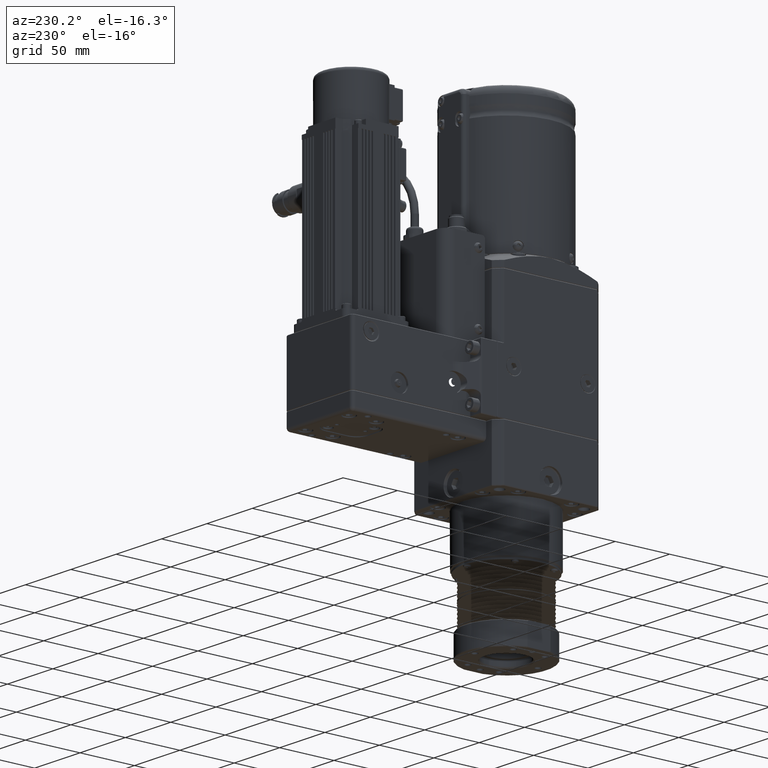
[diagram: clean part render]
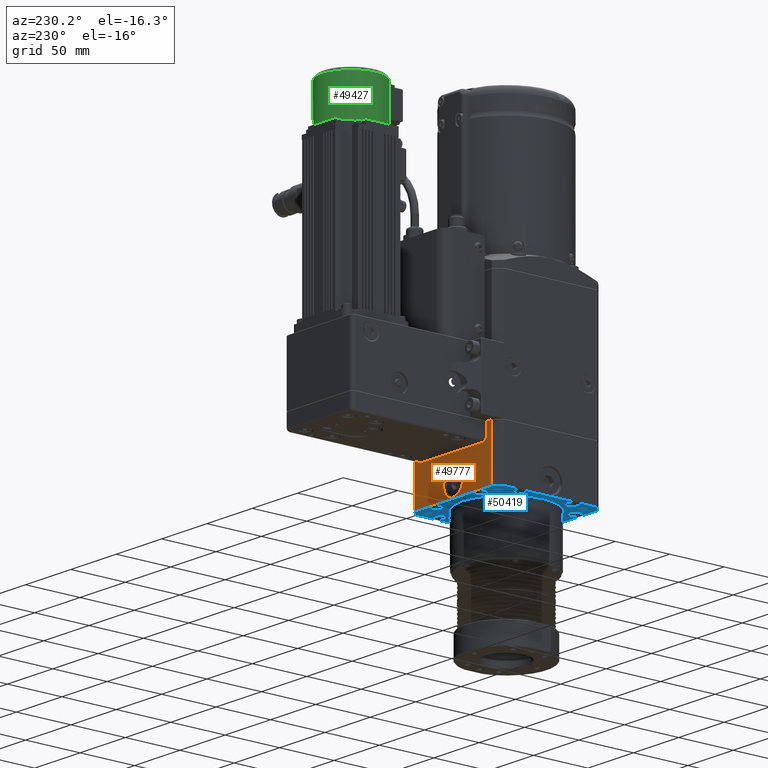
[diagram: same view with three faces highlighted in distinct colors, each labeled with its STEP entity id]
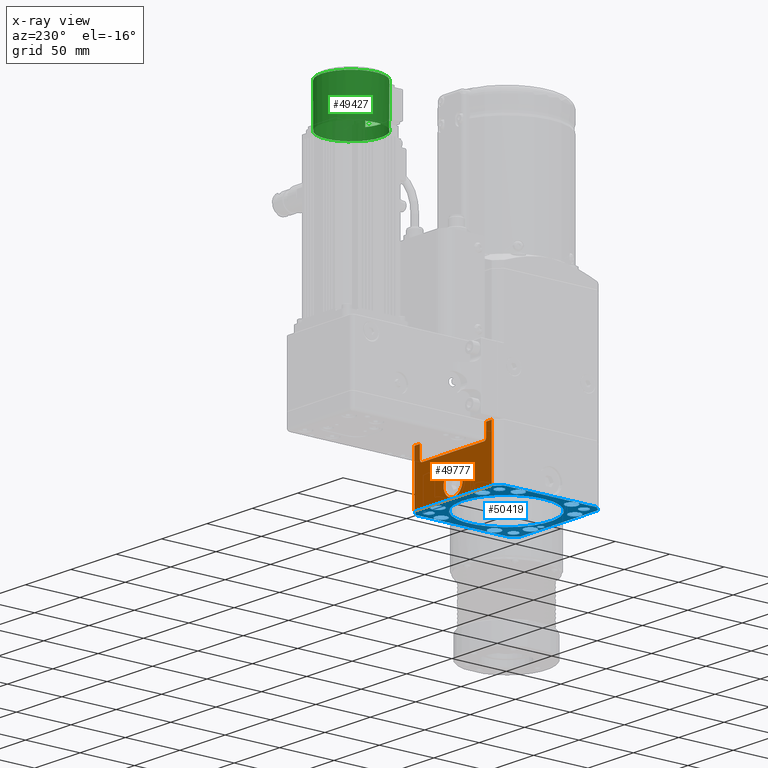
[diagram: x-ray of the same camera — body ghosted, the three highlighted faces saturated]
A machine part, auxiliary view with three faces highlighted in distinct colors.
The next image is the same camera in x-ray (body ghosted, the three faces saturated) — at least one of them is partly hidden behind the body in this view.
Their STEP definitions:

[orange] entity #49777 — the highlighted planar face has unit normal (0, 1, -0).
#2407=FACE_BOUND('',#6388,.T.);
#3403=FACE_OUTER_BOUND('',#6387,.T.);
#6387=EDGE_LOOP('',(#35635,#35636,#35637,#35638,#35639,#35640,#35641,#35642,
#35643,#35644));
#6388=EDGE_LOOP('',(#35645,#35646));
#9017=LINE('',#71653,#13239);
#10097=LINE('',#75614,#14319);
#10101=LINE('',#75626,#14323);
#10103=LINE('',#75634,#14325);
#10130=LINE('',#75771,#14352);
#10131=LINE('',#75773,#14353);
#10132=LINE('',#75775,#14354);
#10133=LINE('',#75776,#14355);
#13239=VECTOR('',#57363,10.);
#14319=VECTOR('',#60585,10.);
#14323=VECTOR('',#60597,10.);
#14325=VECTOR('',#60607,10.);
#14352=VECTOR('',#60714,10.);
#14353=VECTOR('',#60715,10.);
#14354=VECTOR('',#60716,10.);
#14355=VECTOR('',#60717,10.);
#17846=CIRCLE('',#53240,2.50000000000033);
#17848=CIRCLE('',#53244,2.50000000000032);
#17867=CIRCLE('',#53286,10.5);
#17868=CIRCLE('',#53287,10.5);
#19804=VERTEX_POINT('',#71650);
#19805=VERTEX_POINT('',#71652);
#20822=VERTEX_POINT('',#75572);
#20833=VERTEX_POINT('',#75610);
#20835=VERTEX_POINT('',#75616);
#20837=VERTEX_POINT('',#75622);
#20839=VERTEX_POINT('',#75628);
#20866=VERTEX_POINT('',#75770);
#20867=VERTEX_POINT('',#75772);
#20868=VERTEX_POINT('',#75774);
#20869=VERTEX_POINT('',#75777);
#20870=VERTEX_POINT('',#75778);
#24784=EDGE_CURVE('',#19804,#19805,#9017,.T.);
#26411=EDGE_CURVE('',#20833,#20822,#10097,.T.);
#26414=EDGE_CURVE('',#20835,#20833,#17846,.T.);
#26417=EDGE_CURVE('',#20837,#20835,#10101,.T.);
#26420=EDGE_CURVE('',#20839,#20837,#17848,.T.);
#26421=EDGE_CURVE('',#19804,#20839,#10103,.T.);
#26472=EDGE_CURVE('',#20866,#20822,#10130,.T.);
#26473=EDGE_CURVE('',#20867,#20866,#10131,.T.);
#26474=EDGE_CURVE('',#20868,#20867,#10132,.T.);
#26475=EDGE_CURVE('',#19805,#20868,#10133,.T.);
#26476=EDGE_CURVE('',#20869,#20870,#17867,.T.);
#26477=EDGE_CURVE('',#20870,#20869,#17868,.T.);
#35635=ORIENTED_EDGE('',*,*,#26421,.T.);
#35636=ORIENTED_EDGE('',*,*,#26420,.T.);
#35637=ORIENTED_EDGE('',*,*,#26417,.T.);
#35638=ORIENTED_EDGE('',*,*,#26414,.T.);
#35639=ORIENTED_EDGE('',*,*,#26411,.T.);
#35640=ORIENTED_EDGE('',*,*,#26472,.F.);
#35641=ORIENTED_EDGE('',*,*,#26473,.F.);
#35642=ORIENTED_EDGE('',*,*,#26474,.F.);
#35643=ORIENTED_EDGE('',*,*,#26475,.F.);
#35644=ORIENTED_EDGE('',*,*,#24784,.F.);
#35645=ORIENTED_EDGE('',*,*,#26476,.T.);
#35646=ORIENTED_EDGE('',*,*,#26477,.T.);
#47815=PLANE('',#53285);
#49777=ADVANCED_FACE('',(#3403,#2407),#47815,.T.);
#53240=AXIS2_PLACEMENT_3D('',#75620,#60591,#60592);
#53244=AXIS2_PLACEMENT_3D('',#75632,#60603,#60604);
#53285=AXIS2_PLACEMENT_3D('',#75769,#60712,#60713);
#53286=AXIS2_PLACEMENT_3D('',#75779,#60718,#60719);
#53287=AXIS2_PLACEMENT_3D('',#75780,#60720,#60721);
#57363=DIRECTION('',(-1.,3.67725974387164E-16,-5.0570464703182E-46));
#60585=DIRECTION('',(1.35391664119223E-15,1.8634476894827E-30,1.));
#60591=DIRECTION('center_axis',(-3.67725974387164E-16,-1.,2.36131800560411E-30));
#60592=DIRECTION('ref_axis',(0.707106781186546,-2.06074635202254E-16,-0.707106781186549));
#60597=DIRECTION('',(1.,-3.67725974387164E-16,-1.27762421076918E-15));
#60603=DIRECTION('center_axis',(-3.67725974387164E-16,-1.,2.36131800560411E-30));
#60604=DIRECTION('ref_axis',(-0.707106781186548,-8.02888189099252E-18,-0.707106781186547));
#60607=DIRECTION('',(-1.35391664119223E-15,-1.8634476894827E-30,-1.));
#60712=DIRECTION('center_axis',(3.67725974387164E-16,1.,-2.36131800560411E-30));
#60713=DIRECTION('ref_axis',(1.,-3.67725974387164E-16,5.0570464703182E-46));
#60714=DIRECTION('',(-1.,3.67725974387164E-16,-5.0570464703182E-46));
#60715=DIRECTION('',(4.48634226766827E-46,2.36131800560411E-30,1.));
#60716=DIRECTION('',(1.,-3.67725974387164E-16,5.0570464703182E-46));
#60717=DIRECTION('',(-4.48634226766827E-46,-2.36131800560411E-30,-1.));
#60718=DIRECTION('center_axis',(-3.67725974387164E-16,-1.,2.36131800560411E-30));
#60719=DIRECTION('ref_axis',(4.48634226766827E-46,2.36131800560411E-30,
1.));
#60720=DIRECTION('center_axis',(-3.67725974387164E-16,-1.,2.36131800560411E-30));
#60721=DIRECTION('ref_axis',(4.48634226766827E-46,2.36131800560411E-30,
1.));
#71650=CARTESIAN_POINT('',(-36.4999999999996,48.9999999999997,93.5000000000002));
#71652=CARTESIAN_POINT('',(-42.7083130081252,49.,93.5000000000001));
#71653=CARTESIAN_POINT('',(-57.,49.,93.5000000000001));
#75572=CARTESIAN_POINT('',(36.5000000000004,48.9999999999997,93.5000000000001));
#75610=CARTESIAN_POINT('',(36.5000000000003,48.9999999999997,82.0000000000001));
#75614=CARTESIAN_POINT('',(36.5000000000007,49.,86.5));
#75616=CARTESIAN_POINT('',(34.0000000000003,48.9999999999997,79.5000000000001));
#75620=CARTESIAN_POINT('Origin',(34.0000000000003,49.,82.0000000000001));
#75622=CARTESIAN_POINT('',(-33.9999999999997,48.9999999999997,79.5000000000002));
#75626=CARTESIAN_POINT('',(-27.6249999999999,49.,79.4999999999999));
#75628=CARTESIAN_POINT('',(-36.4999999999996,48.9999999999997,82.0000000000002));
#75632=CARTESIAN_POINT('Origin',(-33.9999999999996,49.,82.0000000000002));
#75634=CARTESIAN_POINT('',(-36.5,49.,86.5000000000001));
#75769=CARTESIAN_POINT('Origin',(-49.,49.,94.0000000000001));
#75770=CARTESIAN_POINT('',(42.7083130081253,49.,93.5000000000001));
#75771=CARTESIAN_POINT('',(-57.,49.,93.5000000000001));
#75772=CARTESIAN_POINT('',(42.7083130081253,49.,45.5));
#75773=CARTESIAN_POINT('',(42.7083130081253,49.,69.5000000000001));
#75774=CARTESIAN_POINT('',(-42.7083130081252,49.,45.5000000000001));
#75775=CARTESIAN_POINT('',(-44.5,49.,45.5000000000001));
#75776=CARTESIAN_POINT('',(-42.7083130081252,49.,69.5000000000001));
#75777=CARTESIAN_POINT('',(3.13601923214777E-15,49.,67.0000000000001));
#75778=CARTESIAN_POINT('',(1.85014009304305E-15,49.,46.0000000000001));
#75779=CARTESIAN_POINT('Origin',(3.13601923214777E-15,49.,56.5000000000001));
#75780=CARTESIAN_POINT('Origin',(3.13601923214777E-15,49.,56.5000000000001));

[blue] entity #50419 — the highlighted planar face has unit normal (-0, -0, -1).
#2469=FACE_BOUND('',#7092,.T.);
#2470=FACE_BOUND('',#7093,.T.);
#2471=FACE_BOUND('',#7094,.T.);
#2472=FACE_BOUND('',#7095,.T.);
#2473=FACE_BOUND('',#7096,.T.);
#2474=FACE_BOUND('',#7097,.T.);
#2475=FACE_BOUND('',#7098,.T.);
#2476=FACE_BOUND('',#7099,.T.);
#2477=FACE_BOUND('',#7100,.T.);
#2478=FACE_BOUND('',#7101,.T.);
#2479=FACE_BOUND('',#7102,.T.);
#2480=FACE_BOUND('',#7103,.T.);
#2481=FACE_BOUND('',#7104,.T.);
#2482=FACE_BOUND('',#7105,.T.);
#4045=FACE_OUTER_BOUND('',#7091,.T.);
#7091=EDGE_LOOP('',(#38904,#38905,#38906,#38907,#38908,#38909,#38910,#38911));
#7092=EDGE_LOOP('',(#38912,#38913));
#7093=EDGE_LOOP('',(#38914,#38915));
#7094=EDGE_LOOP('',(#38916,#38917));
#7095=EDGE_LOOP('',(#38918,#38919));
#7096=EDGE_LOOP('',(#38920,#38921));
#7097=EDGE_LOOP('',(#38922,#38923));
#7098=EDGE_LOOP('',(#38924,#38925));
#7099=EDGE_LOOP('',(#38926,#38927));
#7100=EDGE_LOOP('',(#38928,#38929));
#7101=EDGE_LOOP('',(#38930,#38931));
#7102=EDGE_LOOP('',(#38932,#38933));
#7103=EDGE_LOOP('',(#38934,#38935));
#7104=EDGE_LOOP('',(#38936,#38937));
#7105=EDGE_LOOP('',(#38938,#38939));
#11060=LINE('',#81151,#15282);
#11061=LINE('',#81155,#15283);
#11062=LINE('',#81159,#15284);
#11063=LINE('',#81163,#15285);
#15282=VECTOR('',#63918,10.);
#15283=VECTOR('',#63921,10.);
#15284=VECTOR('',#63924,10.);
#15285=VECTOR('',#63927,10.);
#18376=CIRCLE('',#54419,40.5);
#18378=CIRCLE('',#54421,40.5);
#18379=CIRCLE('',#54423,64.5);
#18380=CIRCLE('',#54424,64.5);
#18381=CIRCLE('',#54425,64.5);
#18382=CIRCLE('',#54426,64.5);
#18383=CIRCLE('',#54427,2.5);
#18384=CIRCLE('',#54428,2.5);
#18385=CIRCLE('',#54429,4.25);
#18386=CIRCLE('',#54430,4.25);
#18387=CIRCLE('',#54431,4.25);
#18388=CIRCLE('',#54432,4.25);
#18389=CIRCLE('',#54433,4.25);
#18390=CIRCLE('',#54434,4.25);
#18391=CIRCLE('',#54435,4.25);
#18392=CIRCLE('',#54436,4.25);
#18393=CIRCLE('',#54437,5.5);
#18394=CIRCLE('',#54438,5.5);
#18395=CIRCLE('',#54439,5.5);
#18396=CIRCLE('',#54440,5.5);
#18397=CIRCLE('',#54441,5.5);
#18398=CIRCLE('',#54442,5.5);
#18399=CIRCLE('',#54443,5.5);
#18400=CIRCLE('',#54444,5.5);
#18401=CIRCLE('',#54445,5.5);
#18402=CIRCLE('',#54446,5.5);
#18403=CIRCLE('',#54447,5.5);
#18404=CIRCLE('',#54448,5.5);
#18405=CIRCLE('',#54449,5.5);
#18406=CIRCLE('',#54450,5.5);
#18407=CIRCLE('',#54451,5.5);
#18408=CIRCLE('',#54452,5.5);
#21958=VERTEX_POINT('',#81143);
#21959=VERTEX_POINT('',#81144);
#21960=VERTEX_POINT('',#81149);
#21961=VERTEX_POINT('',#81150);
#21962=VERTEX_POINT('',#81152);
#21963=VERTEX_POINT('',#81154);
#21964=VERTEX_POINT('',#81156);
#21965=VERTEX_POINT('',#81158);
#21966=VERTEX_POINT('',#81160);
#21967=VERTEX_POINT('',#81162);
#21968=VERTEX_POINT('',#81165);
#21969=VERTEX_POINT('',#81166);
#21970=VERTEX_POINT('',#81169);
#21971=VERTEX_POINT('',#81170);
#21972=VERTEX_POINT('',#81173);
#21973=VERTEX_POINT('',#81174);
#21974=VERTEX_POINT('',#81177);
#21975=VERTEX_POINT('',#81178);
#21976=VERTEX_POINT('',#81181);
#21977=VERTEX_POINT('',#81182);
#21978=VERTEX_POINT('',#81185);
#21979=VERTEX_POINT('',#81186);
#21980=VERTEX_POINT('',#81189);
#21981=VERTEX_POINT('',#81190);
#21982=VERTEX_POINT('',#81193);
#21983=VERTEX_POINT('',#81194);
#21984=VERTEX_POINT('',#81197);
#21985=VERTEX_POINT('',#81198);
#21986=VERTEX_POINT('',#81201);
#21987=VERTEX_POINT('',#81202);
#21988=VERTEX_POINT('',#81205);
#21989=VERTEX_POINT('',#81206);
#21990=VERTEX_POINT('',#81209);
#21991=VERTEX_POINT('',#81210);
#21992=VERTEX_POINT('',#81213);
#21993=VERTEX_POINT('',#81214);
#28153=EDGE_CURVE('',#21958,#21959,#18376,.T.);
#28155=EDGE_CURVE('',#21959,#21958,#18378,.T.);
#28156=EDGE_CURVE('',#21960,#21961,#11060,.T.);
#28157=EDGE_CURVE('',#21962,#21960,#18379,.T.);
#28158=EDGE_CURVE('',#21963,#21962,#11061,.T.);
#28159=EDGE_CURVE('',#21964,#21963,#18380,.T.);
#28160=EDGE_CURVE('',#21965,#21964,#11062,.T.);
#28161=EDGE_CURVE('',#21966,#21965,#18381,.T.);
#28162=EDGE_CURVE('',#21967,#21966,#11063,.T.);
#28163=EDGE_CURVE('',#21961,#21967,#18382,.T.);
#28164=EDGE_CURVE('',#21968,#21969,#18383,.T.);
#28165=EDGE_CURVE('',#21969,#21968,#18384,.T.);
#28166=EDGE_CURVE('',#21970,#21971,#18385,.T.);
#28167=EDGE_CURVE('',#21971,#21970,#18386,.T.);
#28168=EDGE_CURVE('',#21972,#21973,#18387,.T.);
#28169=EDGE_CURVE('',#21973,#21972,#18388,.T.);
#28170=EDGE_CURVE('',#21974,#21975,#18389,.T.);
#28171=EDGE_CURVE('',#21975,#21974,#18390,.T.);
#28172=EDGE_CURVE('',#21976,#21977,#18391,.T.);
#28173=EDGE_CURVE('',#21977,#21976,#18392,.T.);
#28174=EDGE_CURVE('',#21978,#21979,#18393,.T.);
#28175=EDGE_CURVE('',#21979,#21978,#18394,.T.);
#28176=EDGE_CURVE('',#21980,#21981,#18395,.T.);
#28177=EDGE_CURVE('',#21981,#21980,#18396,.T.);
#28178=EDGE_CURVE('',#21982,#21983,#18397,.T.);
#28179=EDGE_CURVE('',#21983,#21982,#18398,.T.);
#28180=EDGE_CURVE('',#21984,#21985,#18399,.T.);
#28181=EDGE_CURVE('',#21985,#21984,#18400,.T.);
#28182=EDGE_CURVE('',#21986,#21987,#18401,.T.);
#28183=EDGE_CURVE('',#21987,#21986,#18402,.T.);
#28184=EDGE_CURVE('',#21988,#21989,#18403,.T.);
#28185=EDGE_CURVE('',#21989,#21988,#18404,.T.);
#28186=EDGE_CURVE('',#21990,#21991,#18405,.T.);
#28187=EDGE_CURVE('',#21991,#21990,#18406,.T.);
#28188=EDGE_CURVE('',#21992,#21993,#18407,.T.);
#28189=EDGE_CURVE('',#21993,#21992,#18408,.T.);
#38904=ORIENTED_EDGE('',*,*,#28156,.F.);
#38905=ORIENTED_EDGE('',*,*,#28157,.F.);
#38906=ORIENTED_EDGE('',*,*,#28158,.F.);
#38907=ORIENTED_EDGE('',*,*,#28159,.F.);
#38908=ORIENTED_EDGE('',*,*,#28160,.F.);
#38909=ORIENTED_EDGE('',*,*,#28161,.F.);
#38910=ORIENTED_EDGE('',*,*,#28162,.F.);
#38911=ORIENTED_EDGE('',*,*,#28163,.F.);
#38912=ORIENTED_EDGE('',*,*,#28164,.T.);
#38913=ORIENTED_EDGE('',*,*,#28165,.T.);
#38914=ORIENTED_EDGE('',*,*,#28166,.T.);
#38915=ORIENTED_EDGE('',*,*,#28167,.T.);
#38916=ORIENTED_EDGE('',*,*,#28168,.T.);
#38917=ORIENTED_EDGE('',*,*,#28169,.T.);
#38918=ORIENTED_EDGE('',*,*,#28170,.T.);
#38919=ORIENTED_EDGE('',*,*,#28171,.T.);
#38920=ORIENTED_EDGE('',*,*,#28172,.T.);
#38921=ORIENTED_EDGE('',*,*,#28173,.T.);
#38922=ORIENTED_EDGE('',*,*,#28174,.T.);
#38923=ORIENTED_EDGE('',*,*,#28175,.T.);
#38924=ORIENTED_EDGE('',*,*,#28176,.T.);
#38925=ORIENTED_EDGE('',*,*,#28177,.T.);
#38926=ORIENTED_EDGE('',*,*,#28178,.T.);
#38927=ORIENTED_EDGE('',*,*,#28179,.T.);
#38928=ORIENTED_EDGE('',*,*,#28180,.T.);
#38929=ORIENTED_EDGE('',*,*,#28181,.T.);
#38930=ORIENTED_EDGE('',*,*,#28182,.T.);
#38931=ORIENTED_EDGE('',*,*,#28183,.T.);
#38932=ORIENTED_EDGE('',*,*,#28184,.T.);
#38933=ORIENTED_EDGE('',*,*,#28185,.T.);
#38934=ORIENTED_EDGE('',*,*,#28186,.T.);
#38935=ORIENTED_EDGE('',*,*,#28187,.T.);
#38936=ORIENTED_EDGE('',*,*,#28188,.T.);
#38937=ORIENTED_EDGE('',*,*,#28189,.T.);
#38938=ORIENTED_EDGE('',*,*,#28153,.F.);
#38939=ORIENTED_EDGE('',*,*,#28155,.F.);
#48306=PLANE('',#54422);
#50419=ADVANCED_FACE('',(#4045,#2469,#2470,#2471,#2472,#2473,#2474,#2475,
#2476,#2477,#2478,#2479,#2480,#2481,#2482),#48306,.T.);
#54419=AXIS2_PLACEMENT_3D('',#81145,#63910,#63911);
#54421=AXIS2_PLACEMENT_3D('',#81147,#63914,#63915);
#54422=AXIS2_PLACEMENT_3D('',#81148,#63916,#63917);
#54423=AXIS2_PLACEMENT_3D('',#81153,#63919,#63920);
#54424=AXIS2_PLACEMENT_3D('',#81157,#63922,#63923);
#54425=AXIS2_PLACEMENT_3D('',#81161,#63925,#63926);
#54426=AXIS2_PLACEMENT_3D('',#81164,#63928,#63929);
#54427=AXIS2_PLACEMENT_3D('',#81167,#63930,#63931);
#54428=AXIS2_PLACEMENT_3D('',#81168,#63932,#63933);
#54429=AXIS2_PLACEMENT_3D('',#81171,#63934,#63935);
#54430=AXIS2_PLACEMENT_3D('',#81172,#63936,#63937);
#54431=AXIS2_PLACEMENT_3D('',#81175,#63938,#63939);
#54432=AXIS2_PLACEMENT_3D('',#81176,#63940,#63941);
#54433=AXIS2_PLACEMENT_3D('',#81179,#63942,#63943);
#54434=AXIS2_PLACEMENT_3D('',#81180,#63944,#63945);
#54435=AXIS2_PLACEMENT_3D('',#81183,#63946,#63947);
#54436=AXIS2_PLACEMENT_3D('',#81184,#63948,#63949);
#54437=AXIS2_PLACEMENT_3D('',#81187,#63950,#63951);
#54438=AXIS2_PLACEMENT_3D('',#81188,#63952,#63953);
#54439=AXIS2_PLACEMENT_3D('',#81191,#63954,#63955);
#54440=AXIS2_PLACEMENT_3D('',#81192,#63956,#63957);
#54441=AXIS2_PLACEMENT_3D('',#81195,#63958,#63959);
#54442=AXIS2_PLACEMENT_3D('',#81196,#63960,#63961);
#54443=AXIS2_PLACEMENT_3D('',#81199,#63962,#63963);
#54444=AXIS2_PLACEMENT_3D('',#81200,#63964,#63965);
#54445=AXIS2_PLACEMENT_3D('',#81203,#63966,#63967);
#54446=AXIS2_PLACEMENT_3D('',#81204,#63968,#63969);
#54447=AXIS2_PLACEMENT_3D('',#81207,#63970,#63971);
#54448=AXIS2_PLACEMENT_3D('',#81208,#63972,#63973);
#54449=AXIS2_PLACEMENT_3D('',#81211,#63974,#63975);
#54450=AXIS2_PLACEMENT_3D('',#81212,#63976,#63977);
#54451=AXIS2_PLACEMENT_3D('',#81215,#63978,#63979);
#54452=AXIS2_PLACEMENT_3D('',#81216,#63980,#63981);
#63910=DIRECTION('center_axis',(-4.48634226766827E-46,-2.36131800560411E-30,
-1.));
#63911=DIRECTION('ref_axis',(1.,1.78492849444173E-16,-7.84091696681017E-46));
#63914=DIRECTION('center_axis',(-4.48634226766827E-46,-2.36131800560411E-30,
-1.));
#63915=DIRECTION('ref_axis',(1.,1.78492849444173E-16,-7.84091696681017E-46));
#63916=DIRECTION('center_axis',(-4.48634226766827E-46,-2.36131800560411E-30,
-1.));
#63917=DIRECTION('ref_axis',(-5.20417042792964E-18,-1.,2.36131800560411E-30));
#63918=DIRECTION('',(5.20417042792964E-18,1.,-2.36131800560411E-30));
#63919=DIRECTION('center_axis',(4.48634226766827E-46,2.36131800560411E-30,
1.));
#63920=DIRECTION('ref_axis',(1.,-5.20417042792964E-18,-3.50324616081204E-46));
#63921=DIRECTION('',(1.,-3.67725974387164E-16,5.0570464703182E-46));
#63922=DIRECTION('center_axis',(4.48634226766827E-46,2.36131800560411E-30,
1.));
#63923=DIRECTION('ref_axis',(-1.,5.20417042792964E-18,3.50324616081204E-46));
#63924=DIRECTION('',(8.5426280561879E-17,-1.,2.36131800560411E-30));
#63925=DIRECTION('center_axis',(4.48634226766827E-46,2.36131800560411E-30,
1.));
#63926=DIRECTION('ref_axis',(-1.,5.20417042792964E-18,3.50324616081204E-46));
#63927=DIRECTION('',(-1.,3.67725974387164E-16,-5.0570464703182E-46));
#63928=DIRECTION('center_axis',(4.48634226766827E-46,2.36131800560411E-30,
1.));
#63929=DIRECTION('ref_axis',(1.,-5.20417042792964E-18,-3.50324616081204E-46));
#63930=DIRECTION('center_axis',(4.48634226766827E-46,2.36131800560411E-30,
1.));
#63931=DIRECTION('ref_axis',(1.,-5.20417042792964E-18,-3.50324616081204E-46));
#63932=DIRECTION('center_axis',(4.48634226766827E-46,2.36131800560411E-30,
1.));
#63933=DIRECTION('ref_axis',(1.,-5.20417042792964E-18,-3.50324616081204E-46));
#63934=DIRECTION('center_axis',(4.48634226766827E-46,2.36131800560411E-30,
1.));
#63935=DIRECTION('ref_axis',(-4.21131823450024E-16,-1.,2.36131800560411E-30));
#63936=DIRECTION('center_axis',(4.48634226766827E-46,2.36131800560411E-30,
1.));
#63937=DIRECTION('ref_axis',(-4.21131823450024E-16,-1.,2.36131800560411E-30));
#63938=DIRECTION('center_axis',(4.48634226766827E-46,2.36131800560411E-30,
1.));
#63939=DIRECTION('ref_axis',(-4.21131823450024E-16,-1.,2.36131800560411E-30));
#63940=DIRECTION('center_axis',(4.48634226766827E-46,2.36131800560411E-30,
1.));
#63941=DIRECTION('ref_axis',(-4.21131823450024E-16,-1.,2.36131800560411E-30));
#63942=DIRECTION('center_axis',(4.48634226766827E-46,2.36131800560411E-30,
1.));
#63943=DIRECTION('ref_axis',(-4.21131823450024E-16,-1.,2.36131800560411E-30));
#63944=DIRECTION('center_axis',(4.48634226766827E-46,2.36131800560411E-30,
1.));
#63945=DIRECTION('ref_axis',(-4.21131823450024E-16,-1.,2.36131800560411E-30));
#63946=DIRECTION('center_axis',(4.48634226766827E-46,2.36131800560411E-30,
1.));
#63947=DIRECTION('ref_axis',(-4.21131823450024E-16,-1.,2.36131800560411E-30));
#63948=DIRECTION('center_axis',(4.48634226766827E-46,2.36131800560411E-30,
1.));
#63949=DIRECTION('ref_axis',(-4.21131823450024E-16,-1.,2.36131800560411E-30));
#63950=DIRECTION('center_axis',(4.48634226766827E-46,2.36131800560411E-30,
1.));
#63951=DIRECTION('ref_axis',(4.10723482594165E-16,-1.,2.36131800560411E-30));
#63952=DIRECTION('center_axis',(4.48634226766827E-46,2.36131800560411E-30,
1.));
#63953=DIRECTION('ref_axis',(4.10723482594165E-16,-1.,2.36131800560411E-30));
#63954=DIRECTION('center_axis',(4.48634226766827E-46,2.36131800560411E-30,
1.));
#63955=DIRECTION('ref_axis',(4.10723482594165E-16,-1.,2.36131800560411E-30));
#63956=DIRECTION('center_axis',(4.48634226766827E-46,2.36131800560411E-30,
1.));
#63957=DIRECTION('ref_axis',(4.10723482594165E-16,-1.,2.36131800560411E-30));
#63958=DIRECTION('center_axis',(4.48634226766827E-46,2.36131800560411E-30,
1.));
#63959=DIRECTION('ref_axis',(4.10723482594165E-16,-1.,2.36131800560411E-30));
#63960=DIRECTION('center_axis',(4.48634226766827E-46,2.36131800560411E-30,
1.));
#63961=DIRECTION('ref_axis',(4.10723482594165E-16,-1.,2.36131800560411E-30));
#63962=DIRECTION('center_axis',(4.48634226766827E-46,2.36131800560411E-30,
1.));
#63963=DIRECTION('ref_axis',(4.10723482594165E-16,-1.,2.36131800560411E-30));
#63964=DIRECTION('center_axis',(4.48634226766827E-46,2.36131800560411E-30,
1.));
#63965=DIRECTION('ref_axis',(4.10723482594165E-16,-1.,2.36131800560411E-30));
#63966=DIRECTION('center_axis',(4.48634226766827E-46,2.36131800560411E-30,
1.));
#63967=DIRECTION('ref_axis',(-4.21131823450024E-16,-1.,2.36131800560411E-30));
#63968=DIRECTION('center_axis',(4.48634226766827E-46,2.36131800560411E-30,
1.));
#63969=DIRECTION('ref_axis',(-4.21131823450024E-16,-1.,2.36131800560411E-30));
#63970=DIRECTION('center_axis',(4.48634226766827E-46,2.36131800560411E-30,
1.));
#63971=DIRECTION('ref_axis',(-4.21131823450024E-16,-1.,2.36131800560411E-30));
#63972=DIRECTION('center_axis',(4.48634226766827E-46,2.36131800560411E-30,
1.));
#63973=DIRECTION('ref_axis',(-4.21131823450024E-16,-1.,2.36131800560411E-30));
#63974=DIRECTION('center_axis',(4.48634226766827E-46,2.36131800560411E-30,
1.));
#63975=DIRECTION('ref_axis',(-4.21131823450024E-16,-1.,2.36131800560411E-30));
#63976=DIRECTION('center_axis',(4.48634226766827E-46,2.36131800560411E-30,
1.));
#63977=DIRECTION('ref_axis',(-4.21131823450024E-16,-1.,2.36131800560411E-30));
#63978=DIRECTION('center_axis',(4.48634226766827E-46,2.36131800560411E-30,
1.));
#63979=DIRECTION('ref_axis',(-4.21131823450024E-16,-1.,2.36131800560411E-30));
#63980=DIRECTION('center_axis',(4.48634226766827E-46,2.36131800560411E-30,
1.));
#63981=DIRECTION('ref_axis',(-4.21131823450024E-16,-1.,2.36131800560411E-30));
#81143=CARTESIAN_POINT('',(-40.5,-2.26914086594213E-15,45.0000000000001));
#81144=CARTESIAN_POINT('',(5.17058843887793E-15,40.5,45.0000000000001));
#81145=CARTESIAN_POINT('Origin',(-7.70559550556767E-45,1.06259310252185E-28,
45.0000000000001));
#81147=CARTESIAN_POINT('Origin',(-7.70559550556767E-45,1.06259310252185E-28,
45.0000000000001));
#81148=CARTESIAN_POINT('Origin',(-40.,2.08166817117292E-16,45.0000000000001));
#81149=CARTESIAN_POINT('',(48.5,-42.5205832509386,45.0000000000001));
#81150=CARTESIAN_POINT('',(48.5,42.5205832509386,45.0000000000001));
#81151=CARTESIAN_POINT('',(48.5,24.5,45.0000000000001));
#81152=CARTESIAN_POINT('',(42.5205832509386,-48.5,45.0000000000001));
#81153=CARTESIAN_POINT('Origin',(-7.70559550556767E-45,1.06259310252185E-28,
45.0000000000001));
#81154=CARTESIAN_POINT('',(-42.5205832509386,-48.5,45.0000000000001));
#81155=CARTESIAN_POINT('',(4.49999999999999,-48.5,45.0000000000001));
#81156=CARTESIAN_POINT('',(-48.5,-42.5205832509386,45.0000000000001));
#81157=CARTESIAN_POINT('Origin',(-7.70559550556767E-45,1.06259310252185E-28,
45.0000000000001));
#81158=CARTESIAN_POINT('',(-48.5,42.5205832509386,45.0000000000001));
#81159=CARTESIAN_POINT('',(-48.5,-24.5,45.0000000000001));
#81160=CARTESIAN_POINT('',(-42.5205832509386,48.5,45.0000000000001));
#81161=CARTESIAN_POINT('Origin',(-7.70559550556767E-45,1.06259310252185E-28,
45.0000000000001));
#81162=CARTESIAN_POINT('',(42.5205832509386,48.5,45.0000000000001));
#81163=CARTESIAN_POINT('',(-44.5,48.5,45.0000000000001));
#81164=CARTESIAN_POINT('Origin',(-7.70559550556767E-45,1.06259310252185E-28,
45.0000000000001));
#81165=CARTESIAN_POINT('',(17.5,-44.,45.0000000000001));
#81166=CARTESIAN_POINT('',(12.5,-44.,45.0000000000001));
#81167=CARTESIAN_POINT('Origin',(15.,-44.,45.0000000000001));
#81168=CARTESIAN_POINT('Origin',(15.,-44.,45.0000000000001));
#81169=CARTESIAN_POINT('',(38.8908729652601,34.6408729652601,45.0000000000001));
#81170=CARTESIAN_POINT('',(38.8908729652601,43.1408729652601,45.0000000000001));
#81171=CARTESIAN_POINT('Origin',(38.8908729652601,38.8908729652601,45.0000000000001));
#81172=CARTESIAN_POINT('Origin',(38.8908729652601,38.8908729652601,45.0000000000001));
#81173=CARTESIAN_POINT('',(-38.8908729652602,-43.1408729652601,45.0000000000001));
#81174=CARTESIAN_POINT('',(-38.8908729652602,-34.6408729652601,45.0000000000001));
#81175=CARTESIAN_POINT('Origin',(-38.8908729652602,-38.8908729652601,45.0000000000001));
#81176=CARTESIAN_POINT('Origin',(-38.8908729652602,-38.8908729652601,45.0000000000001));
#81177=CARTESIAN_POINT('',(-38.8908729652601,34.6408729652601,45.0000000000001));
#81178=CARTESIAN_POINT('',(-38.8908729652601,43.1408729652601,45.0000000000001));
#81179=CARTESIAN_POINT('Origin',(-38.8908729652601,38.8908729652601,45.0000000000001));
#81180=CARTESIAN_POINT('Origin',(-38.8908729652601,38.8908729652601,45.0000000000001));
#81181=CARTESIAN_POINT('',(38.8908729652601,-43.1408729652601,45.0000000000001));
#81182=CARTESIAN_POINT('',(38.8908729652601,-34.6408729652601,45.0000000000001));
#81183=CARTESIAN_POINT('Origin',(38.8908729652601,-38.8908729652601,45.0000000000001));
#81184=CARTESIAN_POINT('Origin',(38.8908729652601,-38.8908729652601,45.0000000000001));
#81185=CARTESIAN_POINT('',(42.4352447854375,19.,45.0000000000001));
#81186=CARTESIAN_POINT('',(42.4352447854375,30.,45.0000000000001));
#81187=CARTESIAN_POINT('Origin',(42.4352447854375,24.5,45.0000000000001));
#81188=CARTESIAN_POINT('Origin',(42.4352447854375,24.5,45.0000000000001));
#81189=CARTESIAN_POINT('',(24.5,36.9352447854375,45.0000000000001));
#81190=CARTESIAN_POINT('',(24.5,47.9352447854375,45.0000000000001));
#81191=CARTESIAN_POINT('Origin',(24.5,42.4352447854375,45.0000000000001));
#81192=CARTESIAN_POINT('Origin',(24.5,42.4352447854375,45.0000000000001));
#81193=CARTESIAN_POINT('',(24.5,-47.9352447854375,45.0000000000001));
#81194=CARTESIAN_POINT('',(24.5,-36.9352447854375,45.0000000000001));
#81195=CARTESIAN_POINT('Origin',(24.5,-42.4352447854375,45.0000000000001));
#81196=CARTESIAN_POINT('Origin',(24.5,-42.4352447854375,45.0000000000001));
#81197=CARTESIAN_POINT('',(42.4352447854375,-30.,45.0000000000001));
#81198=CARTESIAN_POINT('',(42.4352447854375,-19.,45.0000000000001));
#81199=CARTESIAN_POINT('Origin',(42.4352447854375,-24.5,45.0000000000001));
#81200=CARTESIAN_POINT('Origin',(42.4352447854375,-24.5,45.0000000000001));
#81201=CARTESIAN_POINT('',(-42.4352447854375,19.,45.0000000000001));
#81202=CARTESIAN_POINT('',(-42.4352447854375,30.,45.0000000000001));
#81203=CARTESIAN_POINT('Origin',(-42.4352447854375,24.5,45.0000000000001));
#81204=CARTESIAN_POINT('Origin',(-42.4352447854375,24.5,45.0000000000001));
#81205=CARTESIAN_POINT('',(-42.4352447854375,-30.,45.0000000000001));
#81206=CARTESIAN_POINT('',(-42.4352447854375,-19.,45.0000000000001));
#81207=CARTESIAN_POINT('Origin',(-42.4352447854375,-24.5,45.0000000000001));
#81208=CARTESIAN_POINT('Origin',(-42.4352447854375,-24.5,45.0000000000001));
#81209=CARTESIAN_POINT('',(-24.5,-47.9352447854375,45.0000000000001));
#81210=CARTESIAN_POINT('',(-24.5,-36.9352447854375,45.0000000000001));
#81211=CARTESIAN_POINT('Origin',(-24.5,-42.4352447854375,45.0000000000001));
#81212=CARTESIAN_POINT('Origin',(-24.5,-42.4352447854375,45.0000000000001));
#81213=CARTESIAN_POINT('',(-24.5,36.9352447854375,45.0000000000001));
#81214=CARTESIAN_POINT('',(-24.5,47.9352447854375,45.0000000000001));
#81215=CARTESIAN_POINT('Origin',(-24.5,42.4352447854375,45.0000000000001));
#81216=CARTESIAN_POINT('Origin',(-24.5,42.4352447854375,45.0000000000001));

[green] entity #49427 — the highlighted cylindrical surface (bore or boss wall) has radius 27 mm, axis along (0, -0, 1).
#1036=CYLINDRICAL_SURFACE('',#52754,27.);
#3053=FACE_OUTER_BOUND('',#6014,.T.);
#6014=EDGE_LOOP('',(#33899,#33900,#33901,#33902,#33903,#33904,#33905,#33906,
#33907,#33908,#33909,#33910,#33911,#33912,#33913,#33914,#33915,#33916,#33917,
#33918,#33919));
#9366=LINE('',#73511,#13588);
#9374=LINE('',#73534,#13596);
#9568=LINE('',#74144,#13790);
#9569=LINE('',#74146,#13791);
#13588=VECTOR('',#58496,10.);
#13596=VECTOR('',#58518,10.);
#13790=VECTOR('',#59090,27.);
#13791=VECTOR('',#59091,27.);
#17593=CIRCLE('',#52560,27.);
#17594=CIRCLE('',#52561,27.);
#17595=CIRCLE('',#52563,27.);
#17596=CIRCLE('',#52564,27.);
#17683=CIRCLE('',#52751,27.);
#17684=CIRCLE('',#52752,27.);
#17686=CIRCLE('',#52755,27.);
#17687=CIRCLE('',#52756,27.);
#17688=CIRCLE('',#52757,27.);
#17689=CIRCLE('',#52758,27.);
#17690=CIRCLE('',#52759,27.);
#17691=CIRCLE('',#52760,27.);
#17692=CIRCLE('',#52761,27.);
#17693=CIRCLE('',#52762,27.);
#17694=CIRCLE('',#52763,27.);
#20250=VERTEX_POINT('',#73509);
#20251=VERTEX_POINT('',#73510);
#20254=VERTEX_POINT('',#73518);
#20255=VERTEX_POINT('',#73519);
#20257=VERTEX_POINT('',#73526);
#20259=VERTEX_POINT('',#73530);
#20485=VERTEX_POINT('',#74137);
#20486=VERTEX_POINT('',#74139);
#20487=VERTEX_POINT('',#74145);
#20488=VERTEX_POINT('',#74147);
#20489=VERTEX_POINT('',#74149);
#20490=VERTEX_POINT('',#74151);
#20491=VERTEX_POINT('',#74153);
#20492=VERTEX_POINT('',#74155);
#20493=VERTEX_POINT('',#74157);
#20494=VERTEX_POINT('',#74159);
#20495=VERTEX_POINT('',#74161);
#25416=EDGE_CURVE('',#20250,#20251,#9366,.T.);
#25420=EDGE_CURVE('',#20254,#20255,#17593,.T.);
#25423=EDGE_CURVE('',#20255,#20250,#17594,.T.);
#25424=EDGE_CURVE('',#20251,#20257,#17595,.T.);
#25427=EDGE_CURVE('',#20257,#20259,#17596,.T.);
#25428=EDGE_CURVE('',#20259,#20254,#9374,.T.);
#25712=EDGE_CURVE('',#20485,#20486,#17683,.T.);
#25713=EDGE_CURVE('',#20486,#20485,#17684,.T.);
#25715=EDGE_CURVE('',#20486,#20257,#9568,.T.);
#25716=EDGE_CURVE('',#20255,#20487,#9569,.T.);
#25717=EDGE_CURVE('',#20488,#20487,#17686,.T.);
#25718=EDGE_CURVE('',#20489,#20488,#17687,.T.);
#25719=EDGE_CURVE('',#20490,#20489,#17688,.T.);
#25720=EDGE_CURVE('',#20491,#20490,#17689,.T.);
#25721=EDGE_CURVE('',#20492,#20491,#17690,.T.);
#25722=EDGE_CURVE('',#20493,#20492,#17691,.T.);
#25723=EDGE_CURVE('',#20494,#20493,#17692,.T.);
#25724=EDGE_CURVE('',#20495,#20494,#17693,.T.);
#25725=EDGE_CURVE('',#20487,#20495,#17694,.T.);
#33899=ORIENTED_EDGE('',*,*,#25713,.F.);
#33900=ORIENTED_EDGE('',*,*,#25715,.T.);
#33901=ORIENTED_EDGE('',*,*,#25427,.T.);
#33902=ORIENTED_EDGE('',*,*,#25428,.T.);
#33903=ORIENTED_EDGE('',*,*,#25420,.T.);
#33904=ORIENTED_EDGE('',*,*,#25716,.T.);
#33905=ORIENTED_EDGE('',*,*,#25717,.F.);
#33906=ORIENTED_EDGE('',*,*,#25718,.F.);
#33907=ORIENTED_EDGE('',*,*,#25719,.F.);
#33908=ORIENTED_EDGE('',*,*,#25720,.F.);
#33909=ORIENTED_EDGE('',*,*,#25721,.F.);
#33910=ORIENTED_EDGE('',*,*,#25722,.F.);
#33911=ORIENTED_EDGE('',*,*,#25723,.F.);
#33912=ORIENTED_EDGE('',*,*,#25724,.F.);
#33913=ORIENTED_EDGE('',*,*,#25725,.F.);
#33914=ORIENTED_EDGE('',*,*,#25716,.F.);
#33915=ORIENTED_EDGE('',*,*,#25423,.T.);
#33916=ORIENTED_EDGE('',*,*,#25416,.T.);
#33917=ORIENTED_EDGE('',*,*,#25424,.T.);
#33918=ORIENTED_EDGE('',*,*,#25715,.F.);
#33919=ORIENTED_EDGE('',*,*,#25712,.F.);
#49427=ADVANCED_FACE('',(#3053),#1036,.T.);
#52560=AXIS2_PLACEMENT_3D('',#73520,#58502,#58503);
#52561=AXIS2_PLACEMENT_3D('',#73524,#58506,#58507);
#52563=AXIS2_PLACEMENT_3D('',#73527,#58510,#58511);
#52564=AXIS2_PLACEMENT_3D('',#73532,#58514,#58515);
#52751=AXIS2_PLACEMENT_3D('',#74140,#59082,#59083);
#52752=AXIS2_PLACEMENT_3D('',#74141,#59084,#59085);
#52754=AXIS2_PLACEMENT_3D('',#74143,#59088,#59089);
#52755=AXIS2_PLACEMENT_3D('',#74148,#59092,#59093);
#52756=AXIS2_PLACEMENT_3D('',#74150,#59094,#59095);
#52757=AXIS2_PLACEMENT_3D('',#74152,#59096,#59097);
#52758=AXIS2_PLACEMENT_3D('',#74154,#59098,#59099);
#52759=AXIS2_PLACEMENT_3D('',#74156,#59100,#59101);
#52760=AXIS2_PLACEMENT_3D('',#74158,#59102,#59103);
#52761=AXIS2_PLACEMENT_3D('',#74160,#59104,#59105);
#52762=AXIS2_PLACEMENT_3D('',#74162,#59106,#59107);
#52763=AXIS2_PLACEMENT_3D('',#74163,#59108,#59109);
#58496=DIRECTION('',(6.16447338603729E-16,-1.81782792147336E-15,1.));
#58502=DIRECTION('center_axis',(-6.16447338603729E-16,1.81782792147336E-15,
-1.));
#58503=DIRECTION('ref_axis',(-1.89329930746201E-16,1.,1.81782792147336E-15));
#58506=DIRECTION('center_axis',(-6.16447338603729E-16,1.81782792147336E-15,
-1.));
#58507=DIRECTION('ref_axis',(-1.89329930746201E-16,1.,1.81782792147336E-15));
#58510=DIRECTION('center_axis',(6.16447338603729E-16,-1.81782792147336E-15,
1.));
#58511=DIRECTION('ref_axis',(-1.89329930746201E-16,1.,1.81782792147336E-15));
#58514=DIRECTION('center_axis',(6.16447338603729E-16,-1.81782792147336E-15,
1.));
#58515=DIRECTION('ref_axis',(-1.89329930746201E-16,1.,1.81782792147336E-15));
#58518=DIRECTION('',(-6.16447338603729E-16,1.81782792147336E-15,-1.));
#59082=DIRECTION('center_axis',(6.16447338603729E-16,-1.81782792147336E-15,
1.));
#59083=DIRECTION('ref_axis',(-1.89329930746201E-16,1.,1.81782792147336E-15));
#59084=DIRECTION('center_axis',(6.16447338603729E-16,-1.81782792147336E-15,
1.));
#59085=DIRECTION('ref_axis',(-1.89329930746201E-16,1.,1.81782792147336E-15));
#59088=DIRECTION('center_axis',(6.16447338603729E-16,-1.81782792147336E-15,
1.));
#59089=DIRECTION('ref_axis',(-1.89329930746201E-16,1.,1.81782792147336E-15));
#59090=DIRECTION('',(-6.16447338603729E-16,1.81782792147336E-15,-1.));
#59091=DIRECTION('',(-6.16447338603729E-16,1.81782792147336E-15,-1.));
#59092=DIRECTION('center_axis',(-6.16447338603729E-16,1.81782792147336E-15,
-1.));
#59093=DIRECTION('ref_axis',(-1.89329930746201E-16,1.,1.81782792147336E-15));
#59094=DIRECTION('center_axis',(-6.16447338603729E-16,1.81782792147336E-15,
-1.));
#59095=DIRECTION('ref_axis',(-1.89329930746201E-16,1.,1.81782792147336E-15));
#59096=DIRECTION('center_axis',(-6.16447338603729E-16,1.81782792147336E-15,
-1.));
#59097=DIRECTION('ref_axis',(-1.89329930746201E-16,1.,1.81782792147336E-15));
#59098=DIRECTION('center_axis',(-6.16447338603729E-16,1.81782792147336E-15,
-1.));
#59099=DIRECTION('ref_axis',(-1.89329930746201E-16,1.,1.81782792147336E-15));
#59100=DIRECTION('center_axis',(-6.16447338603729E-16,1.81782792147336E-15,
-1.));
#59101=DIRECTION('ref_axis',(-1.89329930746201E-16,1.,1.81782792147336E-15));
#59102=DIRECTION('center_axis',(-6.16447338603729E-16,1.81782792147336E-15,
-1.));
#59103=DIRECTION('ref_axis',(-1.89329930746201E-16,1.,1.81782792147336E-15));
#59104=DIRECTION('center_axis',(-6.16447338603729E-16,1.81782792147336E-15,
-1.));
#59105=DIRECTION('ref_axis',(-1.89329930746201E-16,1.,1.81782792147336E-15));
#59106=DIRECTION('center_axis',(-6.16447338603729E-16,1.81782792147336E-15,
-1.));
#59107=DIRECTION('ref_axis',(-1.89329930746201E-16,1.,1.81782792147336E-15));
#59108=DIRECTION('center_axis',(-6.16447338603729E-16,1.81782792147336E-15,
-1.));
#59109=DIRECTION('ref_axis',(-1.89329930746201E-16,1.,1.81782792147336E-15));
#73509=CARTESIAN_POINT('',(-12.9999999999994,118.835680867601,308.));
#73510=CARTESIAN_POINT('',(-12.9999999999993,118.835680867601,334.));
#73511=CARTESIAN_POINT('',(-12.9999999999994,118.835680867601,298.));
#73518=CARTESIAN_POINT('',(13.0000000000006,118.835680867601,308.));
#73519=CARTESIAN_POINT('',(6.21538147777174E-13,115.499999999999,308.));
#73520=CARTESIAN_POINT('Origin',(6.13119693289329E-13,142.499999999999,
308.));
#73524=CARTESIAN_POINT('Origin',(6.13119693289329E-13,142.499999999999,
308.));
#73526=CARTESIAN_POINT('',(6.37565778580871E-13,115.499999999999,334.));
#73527=CARTESIAN_POINT('Origin',(6.29147324093026E-13,142.499999999999,
334.));
#73530=CARTESIAN_POINT('',(13.0000000000006,118.835680867601,334.));
#73532=CARTESIAN_POINT('Origin',(6.29147324093026E-13,142.499999999999,
334.));
#73534=CARTESIAN_POINT('',(13.0000000000006,118.835680867601,298.));
#74137=CARTESIAN_POINT('',(6.21345316943784E-13,169.499999999999,335.));
#74139=CARTESIAN_POINT('',(6.38182225919475E-13,115.499999999999,335.));
#74140=CARTESIAN_POINT('Origin',(6.29763771431629E-13,142.499999999999,
335.));
#74141=CARTESIAN_POINT('Origin',(6.29763771431629E-13,142.499999999999,
335.));
#74143=CARTESIAN_POINT('Origin',(6.06955219903291E-13,142.499999999999,
298.));
#74144=CARTESIAN_POINT('',(6.15373674391137E-13,115.499999999999,298.));
#74145=CARTESIAN_POINT('',(6.15373674391137E-13,115.499999999999,298.));
#74146=CARTESIAN_POINT('',(6.15373674391137E-13,115.499999999999,298.));
#74147=CARTESIAN_POINT('',(22.2977494116416,127.274679931913,298.));
#74148=CARTESIAN_POINT('Origin',(6.06955219903291E-13,142.499999999999,
298.));
#74149=CARTESIAN_POINT('',(24.3120699693007,130.755926864675,298.));
#74150=CARTESIAN_POINT('Origin',(6.06955219903291E-13,142.499999999999,
298.));
#74151=CARTESIAN_POINT('',(15.2253200680867,164.79774941164,298.));
#74152=CARTESIAN_POINT('Origin',(6.06955219903291E-13,142.499999999999,
298.));
#74153=CARTESIAN_POINT('',(11.7440731353254,166.8120699693,298.));
#74154=CARTESIAN_POINT('Origin',(6.06955219903291E-13,142.499999999999,
298.));
#74155=CARTESIAN_POINT('',(-22.2977494116403,157.725320068086,298.));
#74156=CARTESIAN_POINT('Origin',(6.06955219903291E-13,142.499999999999,
298.));
#74157=CARTESIAN_POINT('',(-24.3120699692995,154.244073135324,298.));
#74158=CARTESIAN_POINT('Origin',(6.06955219903291E-13,142.499999999999,
298.));
#74159=CARTESIAN_POINT('',(-15.2253200680855,120.202250588358,298.));
#74160=CARTESIAN_POINT('Origin',(6.06955219903291E-13,142.499999999999,
298.));
#74161=CARTESIAN_POINT('',(-11.7440731353242,118.187930030699,298.));
#74162=CARTESIAN_POINT('Origin',(6.06955219903291E-13,142.499999999999,
298.));
#74163=CARTESIAN_POINT('Origin',(6.06955219903291E-13,142.499999999999,
298.));